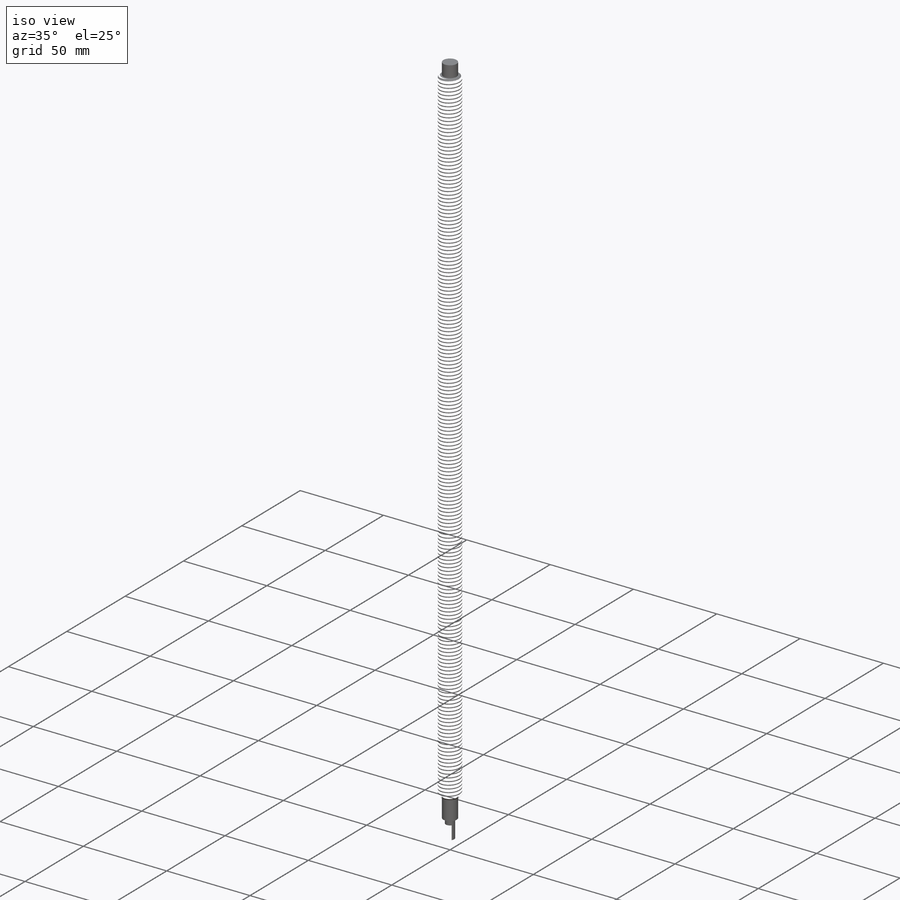
[diagram: iso view]
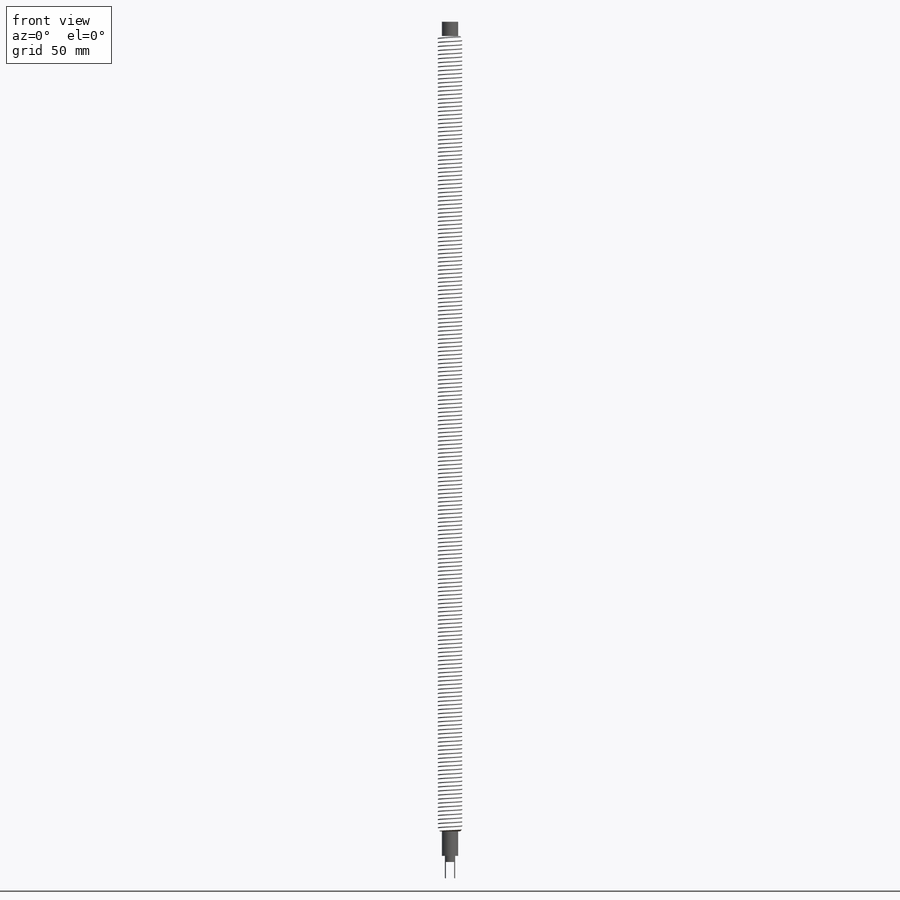
[diagram: front view]
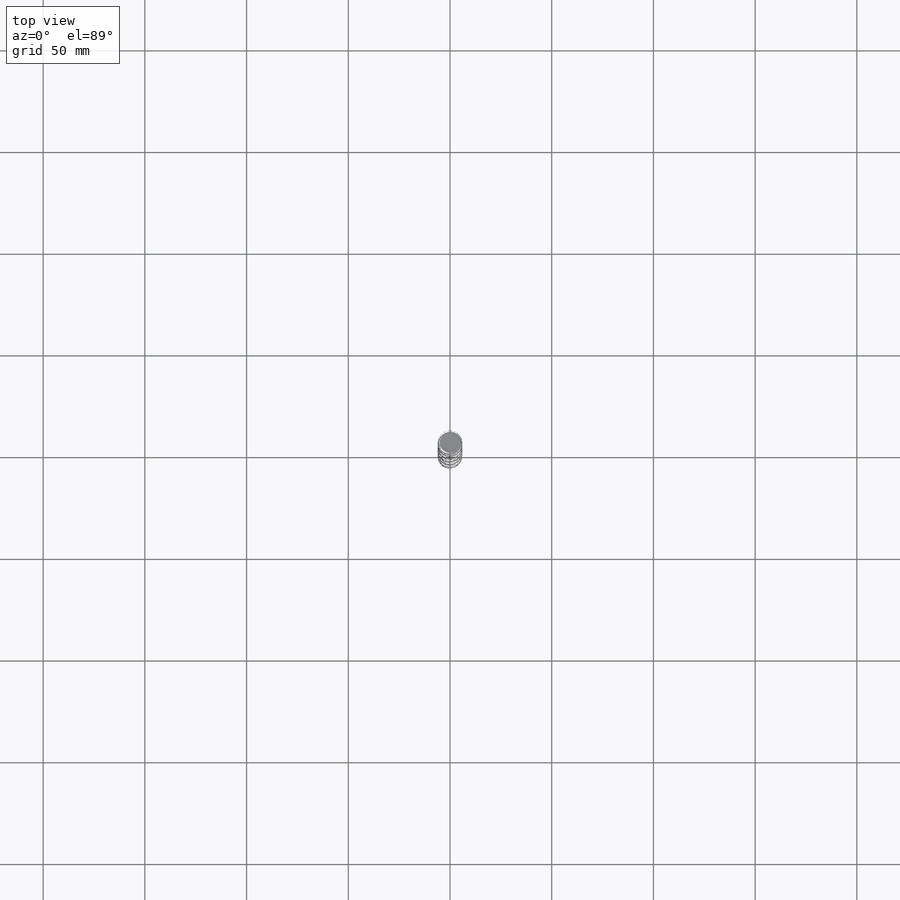
[diagram: top view]
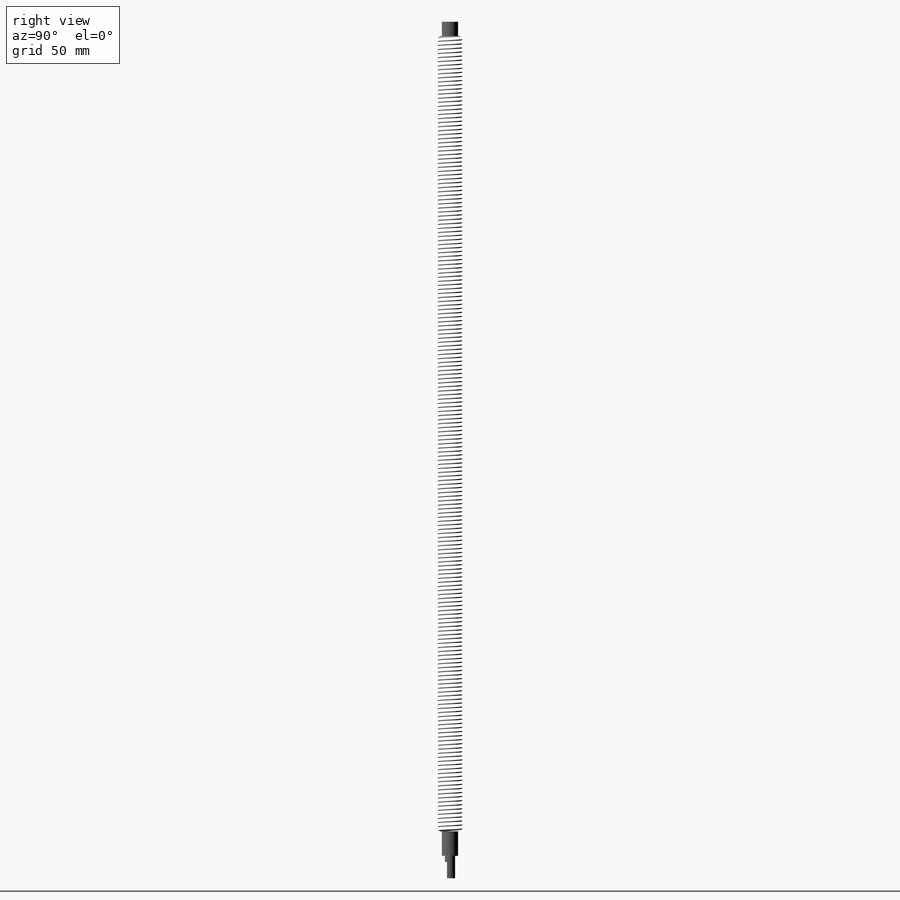
[diagram: right view]
SOLIDWORKS PART (.sldprt)
format: sldprt  version: not decoded by parser v0  size: 4,277,760 bytes
history: native  units: mm
features: sketch x4, material x1, revolve x1, helix x1, plane x1, chamfer x1, sweep x1, cut_extrude x1 (+11 scaffold rows collapsed)
feature tree (22):
  scaffold x11  (default folders/planes/origin — collapsed)
  material  "Plain Carbon Steel"
  sketch  "Sketch1"  dims[c1.D1=420.0mm c1.D2=7.0mm c1.D3=12.0mm c1.D4=11.0mm c1.D5=5.0mm c1.D6=8.0mm c1.D7=12.0mm c2.D1=421.0mm]
  revolve  "Revolve1"  Angle=360deg
  sketch  "Sketch3"
  helix  "Helix/Spiral1"  Pitch=440mm
  plane  "Plane1"
  chamfer  "Chamfer1"  Distance=1mm Angle=45deg
  sketch  "Sketch4"  dims[D1=1.0mm D2=1.5mm D3=0.75mm D4=~0.863495mm]
  sweep  "Cut-Sweep1"
  sketch  "Sketch5"  dims[D1=1.0mm]
  cut_extrude  "Cut-Extrude1"  Depth=8mm
decode coverage: 7 of 9 modeling features carry decoded parameters
note: ~ marks probable driven/reference dimensions
note: suppression state not decoded; provenance and decode notes live in map.json
